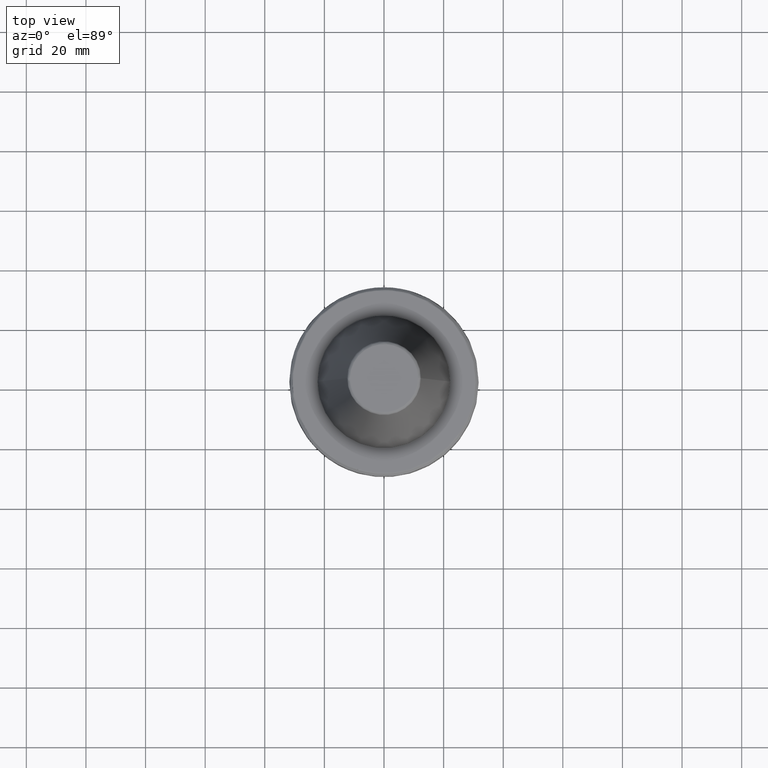
[diagram: clean part render]
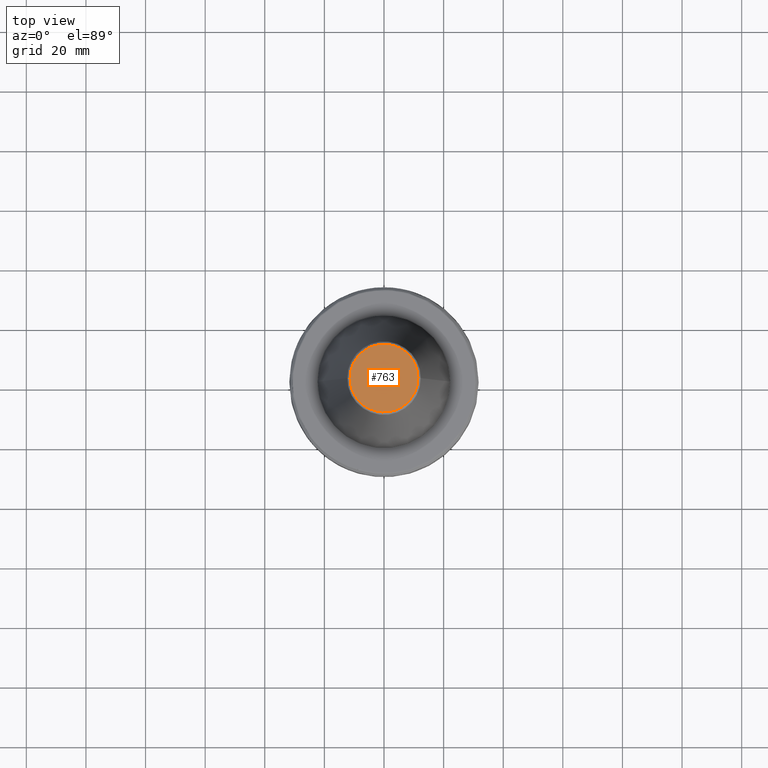
[diagram: same view with one face highlighted and labeled with its STEP entity id]
A machine part, top view. The second image highlights one B-rep face of the part: STEP entity #763.
In plain terms, the highlighted planar face has unit normal (0, 0, 1).
Its self-contained STEP definition (entity closure, byte-faithful):
#379 = CARTESIAN_POINT ( 'NONE',  ( -11.38516258961892900, 1.418516855507481300E-015, 68.40000000000000600 ) ) ;
#417 = EDGE_CURVE ( 'NONE', #1279, #2450, #664, .T. ) ;
#527 = EDGE_LOOP ( 'NONE', ( #602, #3027 ) ) ;
#602 = ORIENTED_EDGE ( 'NONE', *, *, #634, .F. ) ;
#634 = EDGE_CURVE ( 'NONE', #2450, #1279, #3054, .T. ) ;
#664 =( BOUNDED_CURVE ( )  B_SPLINE_CURVE ( 3, ( #2273, #2302, #2971, #3367 ),
 .UNSPECIFIED., .F., .F. ) 
 B_SPLINE_CURVE_WITH_KNOTS ( ( 4, 4 ),
 ( 0.0000000000000000000, 1.000000000000000000 ),
 .UNSPECIFIED. ) 
 CURVE ( )  GEOMETRIC_REPRESENTATION_ITEM ( )  RATIONAL_B_SPLINE_CURVE ( ( 1.000000000000000000, 0.3333333333333333700, 0.3333333333333333700, 1.000000000000000000 ) ) 
 REPRESENTATION_ITEM ( '' )  );
#687 = CARTESIAN_POINT ( 'NONE',  ( -11.38516258961892500, 22.77032517923785400, 68.40000000000000600 ) ) ;
#703 = CARTESIAN_POINT ( 'NONE',  ( -11.38516258961892900, 1.418516855507481300E-015, 68.40000000000000600 ) ) ;
#763 = ADVANCED_FACE ( 'NONE', ( #1072 ), #2635, .T. ) ;
#954 = CARTESIAN_POINT ( 'NONE',  ( 11.38516258961892900, 0.0000000000000000000, 68.40000000000000600 ) ) ;
#1072 = FACE_OUTER_BOUND ( 'NONE', #527, .T. ) ;
#1279 = VERTEX_POINT ( 'NONE', #954 ) ;
#1808 = CARTESIAN_POINT ( 'NONE',  ( 11.38516258961892900, 22.77032517923785400, 68.40000000000000600 ) ) ;
#1946 = CARTESIAN_POINT ( 'NONE',  ( 11.38516258961892900, 0.0000000000000000000, 68.40000000000000600 ) ) ;
#2085 = DIRECTION ( 'NONE',  ( 1.000000000000000000, 0.0000000000000000000, -0.0000000000000000000 ) ) ;
#2108 = AXIS2_PLACEMENT_3D ( 'NONE', #2892, #2320, #2085 ) ;
#2273 = CARTESIAN_POINT ( 'NONE',  ( 11.38516258961892900, 0.0000000000000000000, 68.40000000000000600 ) ) ;
#2302 = CARTESIAN_POINT ( 'NONE',  ( 11.38516258961892900, -22.77032517923785400, 68.40000000000000600 ) ) ;
#2320 = DIRECTION ( 'NONE',  ( 0.0000000000000000000, 0.0000000000000000000, 1.000000000000000000 ) ) ;
#2450 = VERTEX_POINT ( 'NONE', #379 ) ;
#2635 = PLANE ( 'NONE',  #2108 ) ;
#2892 = CARTESIAN_POINT ( 'NONE',  ( 0.0000000000000000000, 0.0000000000000000000, 68.40000000000000600 ) ) ;
#2971 = CARTESIAN_POINT ( 'NONE',  ( -11.38516258961893300, -22.77032517923785400, 68.40000000000000600 ) ) ;
#3027 = ORIENTED_EDGE ( 'NONE', *, *, #417, .F. ) ;
#3054 =( BOUNDED_CURVE ( )  B_SPLINE_CURVE ( 3, ( #703, #687, #1808, #1946 ),
 .UNSPECIFIED., .F., .F. ) 
 B_SPLINE_CURVE_WITH_KNOTS ( ( 4, 4 ),
 ( 0.0000000000000000000, 1.000000000000000000 ),
 .UNSPECIFIED. ) 
 CURVE ( )  GEOMETRIC_REPRESENTATION_ITEM ( )  RATIONAL_B_SPLINE_CURVE ( ( 1.000000000000000000, 0.3333333333333333700, 0.3333333333333333700, 1.000000000000000000 ) ) 
 REPRESENTATION_ITEM ( '' )  );
#3367 = CARTESIAN_POINT ( 'NONE',  ( -11.38516258961892900, 1.418516855507481300E-015, 68.40000000000000600 ) ) ;